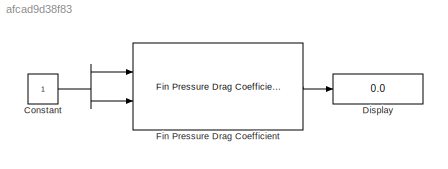
MODEL slx_afcad9d38f83
KIND model
BLOCK [Constant] Constant
BLOCK [Display] Display
  Decimation = 1
  Ports = [1]
BLOCK [Reference] Fin Pressure Drag Coefficient  REF=rocket_drag_library/Fin Pressure Drag Coefficient  (lib defined in slx_51275aa4cfd2)
  Ports = [2, 1]
  SourceBlock = rocket_drag_library/Fin Pressure Drag Coefficient
  SourceType = SubSystem
NET Constant:1 -> Fin Pressure Drag Coefficient:1, Fin Pressure Drag Coefficient:2
LINE Fin Pressure Drag Coefficient:1 -> Display:1
note: NET lines group one-source signal fan-out (src -> all destinations, sorted); 1:1 wires keep LINE
